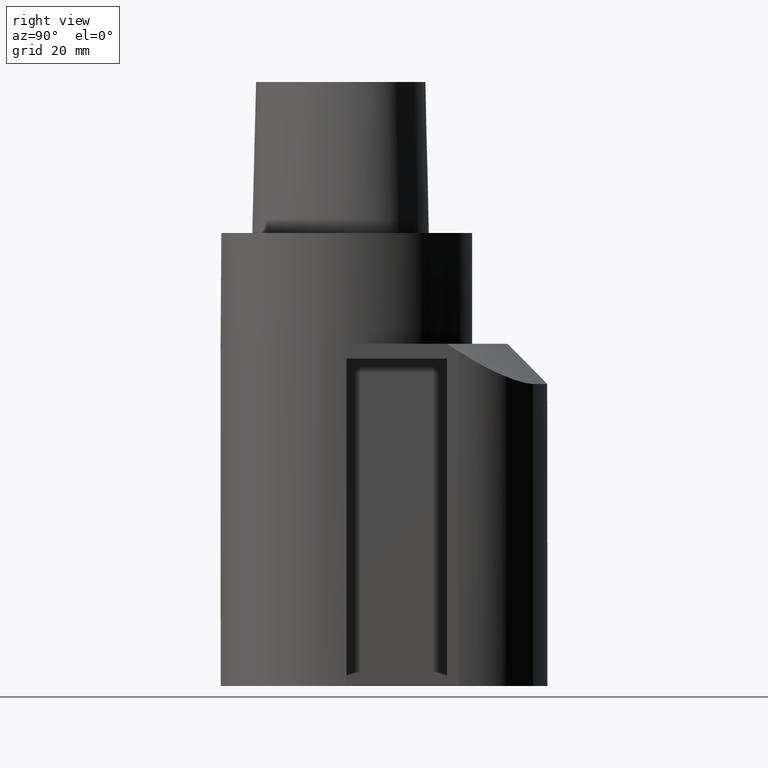
[diagram: clean part render]
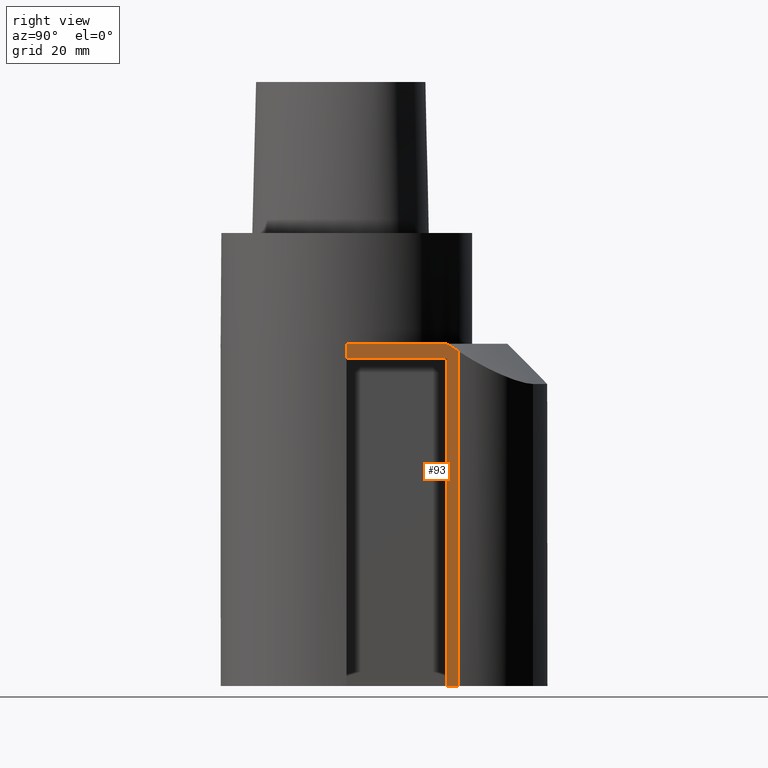
[diagram: same view with one face highlighted and labeled with its STEP entity id]
A machine part, right view. The second image highlights one B-rep face of the part: STEP entity #93.
In plain terms, the highlighted planar face has unit normal (1, -0, 0).
Its self-contained STEP definition (entity closure, byte-faithful):
#93=ADVANCED_FACE('240[2]',(#260),#261,.T.);
#109=EDGE_CURVE('240[2]',#286,#287,#288,.T.);
#128=EDGE_CURVE('240[2]',#315,#316,#317,.T.);
#130=EDGE_CURVE('240[2]',#316,#308,#319,.T.);
#135=EDGE_CURVE('240[2]',#325,#286,#326,.T.);
#153=EDGE_CURVE('240[2]',#287,#352,#353,.T.);
#191=EDGE_CURVE('240[2]',#325,#315,#398,.F.);
#225=EDGE_CURVE('240[2]',#308,#352,#441,.T.);
#260=FACE_OUTER_BOUND('',#471,.T.);
#261=PLANE('',#472);
#286=VERTEX_POINT('',#510);
#287=VERTEX_POINT('',#511);
#288=CIRCLE('',#512,94.0628131705003);
#308=VERTEX_POINT('',#538);
#315=VERTEX_POINT('',#548);
#316=VERTEX_POINT('',#549);
#317=LINE('',#550,#551);
#319=LINE('',#554,#555);
#325=VERTEX_POINT('',#563);
#326=LINE('',#564,#565);
#352=VERTEX_POINT('',#699);
#353=LINE('',#700,#701);
#398=LINE('',#1182,#1183);
#441=LINE('',#1248,#1249);
#471=EDGE_LOOP('',(#1331,#1332,#1333,#1334,#1335,#1336,#1337));
#472=AXIS2_PLACEMENT_3D('',#1338,#1339,#1340);
#510=CARTESIAN_POINT('',(25.0,22.2485954612832,-23.466401061364));
#511=CARTESIAN_POINT('',(25.0,19.9749843554335,-22.0000000000005));
#512=AXIS2_PLACEMENT_3D('',#1366,#1367,#1368);
#538=CARTESIAN_POINT('',(25.0,-3.75166564481333E-012,-25.0000000000009));
#548=CARTESIAN_POINT('',(25.0,19.9999999999962,-90.0000000000002));
#549=CARTESIAN_POINT('',(25.0,19.9999999999962,-25.0000000000009));
#550=CARTESIAN_POINT('',(25.0,19.9999999999962,-89.0000000000009));
#551=VECTOR('',#1392,64.0);
#554=CARTESIAN_POINT('',(25.0,19.9999999999962,-25.0000000000009));
#555=VECTOR('',#1393,20.0);
#563=CARTESIAN_POINT('',(25.0,22.2485954612832,-90.0000000000002));
#564=CARTESIAN_POINT('',(25.0,22.2485954612832,-89.0000000000009));
#565=VECTOR('',#1402,65.5335989386369);
#699=CARTESIAN_POINT('',(25.0,-3.75166564481333E-012,-21.9999999999998));
#700=CARTESIAN_POINT('',(25.0,19.9749843554335,-21.9999999999998));
#701=VECTOR('',#1416,19.9749843554373);
#1182=CARTESIAN_POINT('',(25.0,15.5621488653182,-90.0000000000002));
#1183=VECTOR('',#1468,1.0);
#1248=CARTESIAN_POINT('',(25.0,-3.75166564481333E-012,-25.0000000000009));
#1249=VECTOR('',#1531,3.00000000000111);
#1331=ORIENTED_EDGE('',*,*,#109,.T.);
#1332=ORIENTED_EDGE('',*,*,#153,.T.);
#1333=ORIENTED_EDGE('',*,*,#225,.F.);
#1334=ORIENTED_EDGE('',*,*,#130,.F.);
#1335=ORIENTED_EDGE('',*,*,#128,.F.);
#1336=ORIENTED_EDGE('',*,*,#191,.F.);
#1337=ORIENTED_EDGE('',*,*,#135,.T.);
#1338=CARTESIAN_POINT('',(25.0,11.1242977306397,-263.139999954391));
#1339=DIRECTION('',(1.0,-0.0,0.0));
#1340=DIRECTION('',(0.0,1.0,0.0));
#1366=CARTESIAN_POINT('',(25.0000000000246,-29.8659957914202,-101.772736693368));
#1367=DIRECTION('',(1.0,1.42881355614362E-013,2.18504850608364E-013));
#1368=DIRECTION('',(-2.61065098807139E-013,0.554040321526847,0.832489833044481));
#1392=DIRECTION('',(0.0,0.0,1.0));
#1393=DIRECTION('',(0.0,-1.0,0.0));
#1402=DIRECTION('',(0.0,0.0,1.0));
#1416=DIRECTION('',(0.0,-1.0,0.0));
#1468=DIRECTION('',(0.0,1.0,0.0));
#1531=DIRECTION('',(0.0,0.0,1.0));